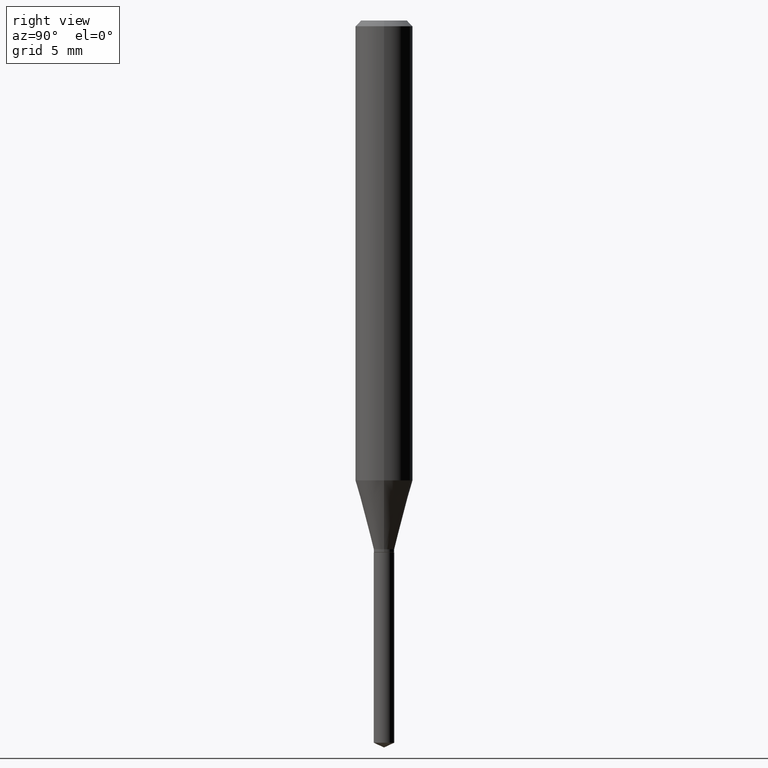
[diagram: clean part render]
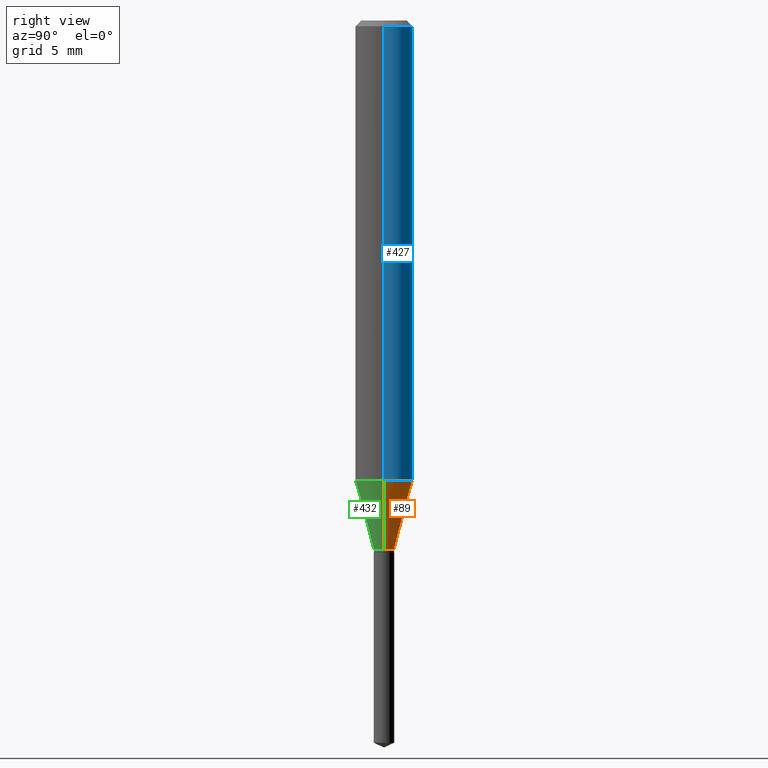
[diagram: same view with three faces highlighted in distinct colors, each labeled with its STEP entity id]
A machine part, right view with three faces highlighted in distinct colors.
Their STEP definitions:

[orange] entity #89 — the highlighted conical surface has half-angle 15 deg.
#11 = VERTEX_POINT ( 'NONE', #290 ) ;
#30 = DIRECTION ( 'NONE',  ( -0.2588190451025212391, 5.211531920934549464E-15, 0.9659258262890679791 ) ) ;
#38 = VERTEX_POINT ( 'NONE', #410 ) ;
#55 = EDGE_CURVE ( 'NONE', #467, #104, #474, .T. ) ;
#89 = ADVANCED_FACE ( 'NONE', ( #106 ), #127, .T. ) ;
#95 = ORIENTED_EDGE ( 'NONE', *, *, #175, .T. ) ;
#101 = DIRECTION ( 'NONE',  ( 1.000000000000000000, -6.982962677686257244E-15, 0.000000000000000000 ) ) ;
#104 = VERTEX_POINT ( 'NONE', #186 ) ;
#106 = FACE_OUTER_BOUND ( 'NONE', #242, .T. ) ;
#107 = CARTESIAN_POINT ( 'NONE',  ( 0.02104999999999999927, -3.946421357294406373E-15, -1.088199999999999834 ) ) ;
#114 = AXIS2_PLACEMENT_3D ( 'NONE', #370, #325, #101 ) ;
#127 = CONICAL_SURFACE ( 'NONE', #114, 0.02104999999999999927, 0.2617993877991499629 ) ;
#135 = CARTESIAN_POINT ( 'NONE',  ( -0.02104999999999999927, -3.649860747051609857E-15, -1.088199999999999834 ) ) ;
#174 = CIRCLE ( 'NONE', #429, 0.05905000000000011628 ) ;
#175 = EDGE_CURVE ( 'NONE', #11, #467, #354, .T. ) ;
#186 = CARTESIAN_POINT ( 'NONE',  ( -0.05905000000000011628, -2.884699848953603761E-15, -0.9463820693123824457 ) ) ;
#192 = CARTESIAN_POINT ( 'NONE',  ( -0.02104999999999999927, -3.659986042934254578E-15, -1.088199999999999834 ) ) ;
#197 = ORIENTED_EDGE ( 'NONE', *, *, #313, .F. ) ;
#201 = CARTESIAN_POINT ( 'NONE',  ( 2.661159154890665186E-29, -3.799429992929110251E-15, -1.088199999999999834 ) ) ;
#217 = LINE ( 'NONE', #107, #415 ) ;
#229 = DIRECTION ( 'NONE',  ( 1.000000000000000000, -6.982962677686266711E-15, 0.000000000000000000 ) ) ;
#238 = DIRECTION ( 'NONE',  ( -2.445468806185136597E-29, 3.491481338843145583E-15, 1.000000000000000000 ) ) ;
#242 = EDGE_LOOP ( 'NONE', ( #95, #341, #468, #197 ) ) ;
#290 = CARTESIAN_POINT ( 'NONE',  ( 0.02104999999999999927, -3.946421357294406373E-15, -1.088199999999999834 ) ) ;
#302 = VECTOR ( 'NONE', #30, 39.37007874015748854 ) ;
#310 = DIRECTION ( 'NONE',  ( 1.000000000000000000, -6.982962677686257244E-15, 0.000000000000000000 ) ) ;
#313 = EDGE_CURVE ( 'NONE', #11, #38, #217, .T. ) ;
#320 = AXIS2_PLACEMENT_3D ( 'NONE', #201, #238, #310 ) ;
#325 = DIRECTION ( 'NONE',  ( -2.445468806185136597E-29, 3.491481338843145583E-15, 1.000000000000000000 ) ) ;
#330 = DIRECTION ( 'NONE',  ( -2.445468806185136597E-29, 3.491481338843145583E-15, 1.000000000000000000 ) ) ;
#337 = EDGE_CURVE ( 'NONE', #38, #104, #174, .T. ) ;
#341 = ORIENTED_EDGE ( 'NONE', *, *, #55, .T. ) ;
#354 = CIRCLE ( 'NONE', #320, 0.02104999999999999927 ) ;
#370 = CARTESIAN_POINT ( 'NONE',  ( 2.661159154890665186E-29, -3.799429992929110251E-15, -1.088199999999999834 ) ) ;
#410 = CARTESIAN_POINT ( 'NONE',  ( 0.05905000000000011628, -3.716619280537318569E-15, -0.9463820693123824457 ) ) ;
#413 = DIRECTION ( 'NONE',  ( 0.2588190451025212391, 1.565188264969622362E-15, 0.9659258262890679791 ) ) ;
#415 = VECTOR ( 'NONE', #413, 39.37007874015748854 ) ;
#429 = AXIS2_PLACEMENT_3D ( 'NONE', #480, #330, #229 ) ;
#467 = VERTEX_POINT ( 'NONE', #192 ) ;
#468 = ORIENTED_EDGE ( 'NONE', *, *, #337, .F. ) ;
#474 = LINE ( 'NONE', #135, #302 ) ;
#480 = CARTESIAN_POINT ( 'NONE',  ( 2.314347829236371175E-29, -3.304275334419943649E-15, -0.9463820693123824457 ) ) ;

[blue] entity #427 — the highlighted cylindrical surface (edge-blend (fillet) strip) has radius 1.4999 mm, axis along (-0, 0, 1).
#3 = ORIENTED_EDGE ( 'NONE', *, *, #337, .T. ) ;
#31 = CARTESIAN_POINT ( 'NONE',  ( -0.05905000000000000526, -1.253179379049500604E-15, -0.01181000000000007565 ) ) ;
#38 = VERTEX_POINT ( 'NONE', #410 ) ;
#47 = CIRCLE ( 'NONE', #369, 0.05905000000000000526 ) ;
#70 = LINE ( 'NONE', #148, #273 ) ;
#104 = VERTEX_POINT ( 'NONE', #186 ) ;
#110 = DIRECTION ( 'NONE',  ( 1.000000000000000000, -6.982962677686268288E-15, 0.000000000000000000 ) ) ;
#138 = CARTESIAN_POINT ( 'NONE',  ( 0.000000000000000000, 0.000000000000000000, 0.000000000000000000 ) ) ;
#139 = EDGE_CURVE ( 'NONE', #206, #353, #47, .T. ) ;
#148 = CARTESIAN_POINT ( 'NONE',  ( -0.05905000000000006771, 4.195754854663396409E-16, -2.904631170795525045E-30 ) ) ;
#174 = CIRCLE ( 'NONE', #429, 0.05905000000000011628 ) ;
#183 = DIRECTION ( 'NONE',  ( -2.445468806185136877E-29, 3.491481338843145188E-15, 1.000000000000000000 ) ) ;
#186 = CARTESIAN_POINT ( 'NONE',  ( -0.05905000000000011628, -2.884699848953603761E-15, -0.9463820693123824457 ) ) ;
#191 = AXIS2_PLACEMENT_3D ( 'NONE', #138, #400, #285 ) ;
#193 = CARTESIAN_POINT ( 'NONE',  ( 0.05905000000000006771, -4.123439461173745257E-16, 2.879382386107503723E-30 ) ) ;
#199 = ORIENTED_EDGE ( 'NONE', *, *, #418, .T. ) ;
#206 = VERTEX_POINT ( 'NONE', #398 ) ;
#216 = ORIENTED_EDGE ( 'NONE', *, *, #384, .F. ) ;
#224 = CYLINDRICAL_SURFACE ( 'NONE', #191, 0.05905000000000006771 ) ;
#229 = DIRECTION ( 'NONE',  ( 1.000000000000000000, -6.982962677686266711E-15, 0.000000000000000000 ) ) ;
#273 = VECTOR ( 'NONE', #183, 39.37007874015748143 ) ;
#285 = DIRECTION ( 'NONE',  ( 1.000000000000000000, -6.982962677686266711E-15, 4.876176775795936353E-29 ) ) ;
#306 = ORIENTED_EDGE ( 'NONE', *, *, #139, .F. ) ;
#323 = FACE_OUTER_BOUND ( 'NONE', #342, .T. ) ;
#329 = CARTESIAN_POINT ( 'NONE',  ( 2.888098660104664642E-31, -4.123439461173780879E-17, -0.01181000000000007565 ) ) ;
#330 = DIRECTION ( 'NONE',  ( -2.445468806185136597E-29, 3.491481338843145583E-15, 1.000000000000000000 ) ) ;
#333 = DIRECTION ( 'NONE',  ( -2.445468806185136877E-29, 3.491481338843145188E-15, 1.000000000000000000 ) ) ;
#337 = EDGE_CURVE ( 'NONE', #38, #104, #174, .T. ) ;
#342 = EDGE_LOOP ( 'NONE', ( #3, #199, #306, #216 ) ) ;
#353 = VERTEX_POINT ( 'NONE', #31 ) ;
#369 = AXIS2_PLACEMENT_3D ( 'NONE', #329, #485, #110 ) ;
#378 = LINE ( 'NONE', #193, #486 ) ;
#384 = EDGE_CURVE ( 'NONE', #38, #206, #378, .T. ) ;
#398 = CARTESIAN_POINT ( 'NONE',  ( 0.05905000000000000526, -4.535783407291119586E-16, -0.01181000000000007565 ) ) ;
#400 = DIRECTION ( 'NONE',  ( -2.445468806185136597E-29, 3.491481338843145583E-15, 1.000000000000000000 ) ) ;
#410 = CARTESIAN_POINT ( 'NONE',  ( 0.05905000000000011628, -3.716619280537318569E-15, -0.9463820693123824457 ) ) ;
#418 = EDGE_CURVE ( 'NONE', #104, #353, #70, .T. ) ;
#427 = ADVANCED_FACE ( 'NONE', ( #323 ), #224, .T. ) ;
#429 = AXIS2_PLACEMENT_3D ( 'NONE', #480, #330, #229 ) ;
#480 = CARTESIAN_POINT ( 'NONE',  ( 2.314347829236371175E-29, -3.304275334419943649E-15, -0.9463820693123824457 ) ) ;
#485 = DIRECTION ( 'NONE',  ( -2.445468806185136597E-29, 3.491481338843145583E-15, 1.000000000000000000 ) ) ;
#486 = VECTOR ( 'NONE', #333, 39.37007874015748143 ) ;

[green] entity #432 — the highlighted conical surface has half-angle 15 deg.
#11 = VERTEX_POINT ( 'NONE', #290 ) ;
#30 = DIRECTION ( 'NONE',  ( -0.2588190451025212391, 5.211531920934549464E-15, 0.9659258262890679791 ) ) ;
#33 = EDGE_LOOP ( 'NONE', ( #180, #351, #150, #451 ) ) ;
#36 = AXIS2_PLACEMENT_3D ( 'NONE', #489, #247, #232 ) ;
#38 = VERTEX_POINT ( 'NONE', #410 ) ;
#55 = EDGE_CURVE ( 'NONE', #467, #104, #474, .T. ) ;
#96 = DIRECTION ( 'NONE',  ( 1.000000000000000000, -6.982962677686266711E-15, 0.000000000000000000 ) ) ;
#102 = AXIS2_PLACEMENT_3D ( 'NONE', #215, #254, #393 ) ;
#104 = VERTEX_POINT ( 'NONE', #186 ) ;
#107 = CARTESIAN_POINT ( 'NONE',  ( 0.02104999999999999927, -3.946421357294406373E-15, -1.088199999999999834 ) ) ;
#135 = CARTESIAN_POINT ( 'NONE',  ( -0.02104999999999999927, -3.649860747051609857E-15, -1.088199999999999834 ) ) ;
#150 = ORIENTED_EDGE ( 'NONE', *, *, #313, .T. ) ;
#180 = ORIENTED_EDGE ( 'NONE', *, *, #55, .F. ) ;
#184 = DIRECTION ( 'NONE',  ( -2.445468806185136597E-29, 3.491481338843145583E-15, 1.000000000000000000 ) ) ;
#186 = CARTESIAN_POINT ( 'NONE',  ( -0.05905000000000011628, -2.884699848953603761E-15, -0.9463820693123824457 ) ) ;
#190 = FACE_OUTER_BOUND ( 'NONE', #33, .T. ) ;
#192 = CARTESIAN_POINT ( 'NONE',  ( -0.02104999999999999927, -3.659986042934254578E-15, -1.088199999999999834 ) ) ;
#198 = CIRCLE ( 'NONE', #439, 0.05905000000000011628 ) ;
#207 = EDGE_CURVE ( 'NONE', #467, #11, #461, .T. ) ;
#215 = CARTESIAN_POINT ( 'NONE',  ( 2.661159154890665186E-29, -3.799429992929110251E-15, -1.088199999999999834 ) ) ;
#217 = LINE ( 'NONE', #107, #415 ) ;
#227 = EDGE_CURVE ( 'NONE', #104, #38, #198, .T. ) ;
#232 = DIRECTION ( 'NONE',  ( 1.000000000000000000, -6.982962677686257244E-15, 0.000000000000000000 ) ) ;
#241 = CONICAL_SURFACE ( 'NONE', #36, 0.02104999999999999927, 0.2617993877991499629 ) ;
#247 = DIRECTION ( 'NONE',  ( -2.445468806185136597E-29, 3.491481338843145583E-15, 1.000000000000000000 ) ) ;
#254 = DIRECTION ( 'NONE',  ( -2.445468806185136597E-29, 3.491481338843145583E-15, 1.000000000000000000 ) ) ;
#290 = CARTESIAN_POINT ( 'NONE',  ( 0.02104999999999999927, -3.946421357294406373E-15, -1.088199999999999834 ) ) ;
#302 = VECTOR ( 'NONE', #30, 39.37007874015748854 ) ;
#313 = EDGE_CURVE ( 'NONE', #11, #38, #217, .T. ) ;
#316 = CARTESIAN_POINT ( 'NONE',  ( 2.314347829236371175E-29, -3.304275334419943649E-15, -0.9463820693123824457 ) ) ;
#351 = ORIENTED_EDGE ( 'NONE', *, *, #207, .T. ) ;
#393 = DIRECTION ( 'NONE',  ( 1.000000000000000000, -6.982962677686257244E-15, 0.000000000000000000 ) ) ;
#410 = CARTESIAN_POINT ( 'NONE',  ( 0.05905000000000011628, -3.716619280537318569E-15, -0.9463820693123824457 ) ) ;
#413 = DIRECTION ( 'NONE',  ( 0.2588190451025212391, 1.565188264969622362E-15, 0.9659258262890679791 ) ) ;
#415 = VECTOR ( 'NONE', #413, 39.37007874015748854 ) ;
#432 = ADVANCED_FACE ( 'NONE', ( #190 ), #241, .T. ) ;
#439 = AXIS2_PLACEMENT_3D ( 'NONE', #316, #184, #96 ) ;
#451 = ORIENTED_EDGE ( 'NONE', *, *, #227, .F. ) ;
#461 = CIRCLE ( 'NONE', #102, 0.02104999999999999927 ) ;
#467 = VERTEX_POINT ( 'NONE', #192 ) ;
#474 = LINE ( 'NONE', #135, #302 ) ;
#489 = CARTESIAN_POINT ( 'NONE',  ( 2.661159154890665186E-29, -3.799429992929110251E-15, -1.088199999999999834 ) ) ;